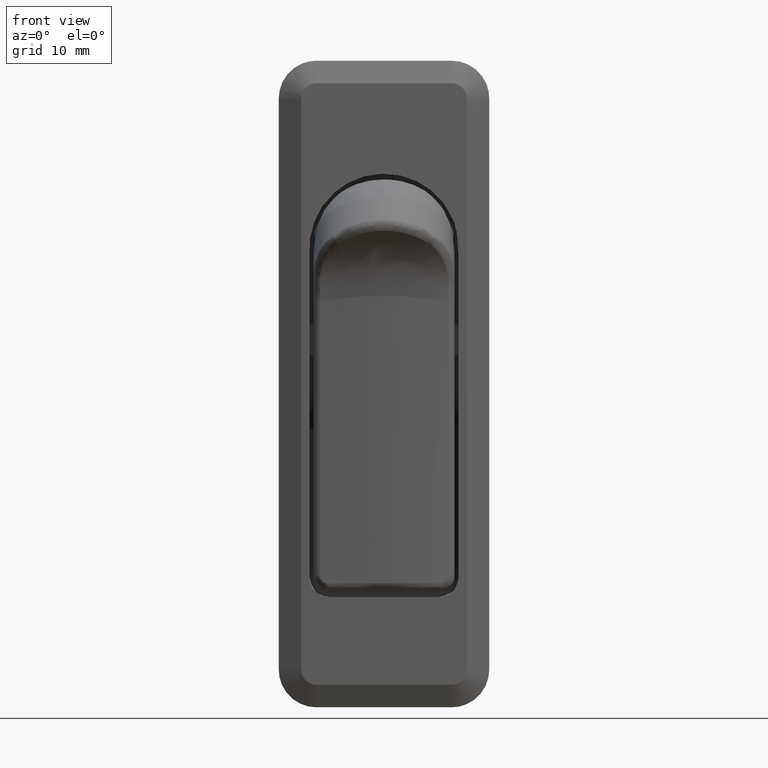
[diagram: clean part render]
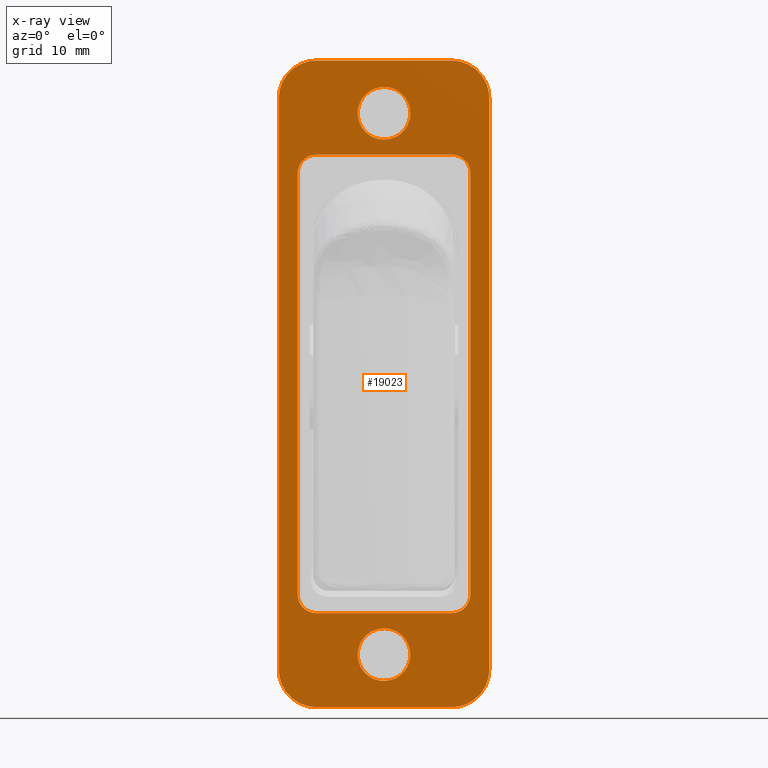
[diagram: x-ray — body ghosted, one internal face saturated and labeled with its STEP entity id]
A machine part, front view, then the same camera in x-ray: the body is ghosted and one INTERNAL B-rep face — a face not visible from any outside direction — is saturated and labeled: STEP entity #19023.
In plain terms, the highlighted face is a freeform B-spline surface patch.
Its self-contained STEP definition (entity closure, byte-faithful):
#12055=CARTESIAN_POINT('',(-3.677614E-015,-3.493471794474069,-54.213669888412298));
#12056=VERTEX_POINT('',#12055);
#12062=CARTESIAN_POINT('',(-3.552714E-015,0.0,-57.500000000000000));
#12063=VERTEX_POINT('',#12062);
#12064=CARTESIAN_POINT('',(-3.552714E-015,0.0,-57.500000000000000));
#12065=CARTESIAN_POINT('',(-3.552714E-015,-3.292471234093840,-57.499999999999993));
#12066=CARTESIAN_POINT('',(-3.677614E-015,-3.493471794474070,-54.213669888412305));
#12074=(BOUNDED_CURVE()B_SPLINE_CURVE(2,(#12064,#12065,#12066),.UNSPECIFIED.,.F.,.U.)B_SPLINE_CURVE_WITH_KNOTS((3,3),(0.500000000000000,0.739332962237988),.UNSPECIFIED.)CURVE()GEOMETRIC_REPRESENTATION_ITEM()RATIONAL_B_SPLINE_CURVE((1.0,0.719603993287829,0.976072041664671))REPRESENTATION_ITEM(''));
#12075=EDGE_CURVE('',#12063,#12056,#12074,.T.);
#12077=CARTESIAN_POINT('',(-3.422506E-015,1.230662910469331,-57.276502525681181));
#12078=VERTEX_POINT('',#12077);
#12079=CARTESIAN_POINT('',(-3.422506E-015,1.230662910469331,-57.276502525681188));
#12080=CARTESIAN_POINT('',(-3.552714E-015,0.635625851342714,-57.500000000000000));
#12081=CARTESIAN_POINT('',(-3.552714E-015,0.0,-57.500000000000000));
#12089=(BOUNDED_CURVE()B_SPLINE_CURVE(2,(#12079,#12080,#12081),.UNSPECIFIED.,.F.,.U.)B_SPLINE_CURVE_WITH_KNOTS((3,3),(0.440284170889381,0.500000000000000),.UNSPECIFIED.)CURVE()GEOMETRIC_REPRESENTATION_ITEM()RATIONAL_B_SPLINE_CURVE((0.893499554624105,0.930038554390707,1.0))REPRESENTATION_ITEM(''));
#12090=EDGE_CURVE('',#12078,#12063,#12089,.T.);
#12140=CARTESIAN_POINT('',(-3.552714E-015,0.0,-50.499999999999993));
#12141=VERTEX_POINT('',#12140);
#12142=CARTESIAN_POINT('',(-3.552714E-015,0.0,-50.499999999999993));
#12143=CARTESIAN_POINT('',(-3.552714E-015,3.500000000000000,-50.499999999999993));
#12144=CARTESIAN_POINT('',(-3.552714E-015,3.500000000000000,-54.0));
#12145=CARTESIAN_POINT('',(-3.552714E-015,3.500000000000000,-56.424133584774268));
#12146=CARTESIAN_POINT('',(-3.422506E-015,1.230662910469331,-57.276502525681181));
#12154=(BOUNDED_CURVE()B_SPLINE_CURVE(2,(#12142,#12143,#12144,#12145,#12146),.UNSPECIFIED.,.F.,.U.)B_SPLINE_CURVE_WITH_KNOTS((3,2,3),(0.0,0.250000000000000,0.440284170889381),.UNSPECIFIED.)CURVE()GEOMETRIC_REPRESENTATION_ITEM()RATIONAL_B_SPLINE_CURVE((1.0,0.707106781186547,1.0,0.777068226795840,0.893499554624105))REPRESENTATION_ITEM(''));
#12155=EDGE_CURVE('',#12141,#12078,#12154,.T.);
#12157=CARTESIAN_POINT('',(-3.677614E-015,-3.493471794474070,-54.213669888412291));
#12158=CARTESIAN_POINT('',(-3.552714E-015,-3.500000000000000,-54.106934671585485));
#12159=CARTESIAN_POINT('',(-3.552714E-015,-3.500000000000000,-54.0));
#12160=CARTESIAN_POINT('',(-3.552714E-015,-3.500000000000000,-50.499999999999993));
#12161=CARTESIAN_POINT('',(-3.552714E-015,0.0,-50.499999999999993));
#12169=(BOUNDED_CURVE()B_SPLINE_CURVE(2,(#12157,#12158,#12159,#12160,#12161),.UNSPECIFIED.,.F.,.U.)B_SPLINE_CURVE_WITH_KNOTS((3,2,3),(0.739332962237987,0.750000000000000,1.0),.UNSPECIFIED.)CURVE()GEOMETRIC_REPRESENTATION_ITEM()RATIONAL_B_SPLINE_CURVE((0.976072041664669,0.987502787898717,1.0,0.707106781186547,1.0))REPRESENTATION_ITEM(''));
#12170=EDGE_CURVE('',#12056,#12141,#12169,.T.);
#12383=CARTESIAN_POINT('',(-3.677614E-015,-3.493471794474069,17.786330111587699));
#12384=VERTEX_POINT('',#12383);
#12390=CARTESIAN_POINT('',(-3.552714E-015,0.0,14.500000000000000));
#12391=VERTEX_POINT('',#12390);
#12392=CARTESIAN_POINT('',(-3.552714E-015,0.0,14.500000000000000));
#12393=CARTESIAN_POINT('',(-3.552714E-015,-3.292471234093840,14.500000000000005));
#12394=CARTESIAN_POINT('',(-3.677614E-015,-3.493471794474070,17.786330111587702));
#12402=(BOUNDED_CURVE()B_SPLINE_CURVE(2,(#12392,#12393,#12394),.UNSPECIFIED.,.F.,.U.)B_SPLINE_CURVE_WITH_KNOTS((3,3),(0.500000000000000,0.739332962237988),.UNSPECIFIED.)CURVE()GEOMETRIC_REPRESENTATION_ITEM()RATIONAL_B_SPLINE_CURVE((1.0,0.719603993287829,0.976072041664671))REPRESENTATION_ITEM(''));
#12403=EDGE_CURVE('',#12391,#12384,#12402,.T.);
#12405=CARTESIAN_POINT('',(-3.422506E-015,1.230662910469331,14.723497474318821));
#12406=VERTEX_POINT('',#12405);
#12407=CARTESIAN_POINT('',(-3.422506E-015,1.230662910469331,14.723497474318817));
#12408=CARTESIAN_POINT('',(-3.552714E-015,0.635625851342714,14.500000000000000));
#12409=CARTESIAN_POINT('',(-3.552714E-015,0.0,14.500000000000000));
#12417=(BOUNDED_CURVE()B_SPLINE_CURVE(2,(#12407,#12408,#12409),.UNSPECIFIED.,.F.,.U.)B_SPLINE_CURVE_WITH_KNOTS((3,3),(0.440284170889381,0.500000000000000),.UNSPECIFIED.)CURVE()GEOMETRIC_REPRESENTATION_ITEM()RATIONAL_B_SPLINE_CURVE((0.893499554624105,0.930038554390707,1.0))REPRESENTATION_ITEM(''));
#12418=EDGE_CURVE('',#12406,#12391,#12417,.T.);
#12468=CARTESIAN_POINT('',(-3.552714E-015,0.0,21.500000000000000));
#12469=VERTEX_POINT('',#12468);
#12470=CARTESIAN_POINT('',(-3.552714E-015,0.0,21.500000000000000));
#12471=CARTESIAN_POINT('',(-3.552714E-015,3.500000000000000,21.500000000000000));
#12472=CARTESIAN_POINT('',(-3.552714E-015,3.500000000000000,18.0));
#12473=CARTESIAN_POINT('',(-3.552714E-015,3.500000000000000,15.575866415225743));
#12474=CARTESIAN_POINT('',(-3.422506E-015,1.230662910469331,14.723497474318815));
#12482=(BOUNDED_CURVE()B_SPLINE_CURVE(2,(#12470,#12471,#12472,#12473,#12474),.UNSPECIFIED.,.F.,.U.)B_SPLINE_CURVE_WITH_KNOTS((3,2,3),(0.0,0.250000000000000,0.440284170889381),.UNSPECIFIED.)CURVE()GEOMETRIC_REPRESENTATION_ITEM()RATIONAL_B_SPLINE_CURVE((1.0,0.707106781186547,1.0,0.777068226795840,0.893499554624105))REPRESENTATION_ITEM(''));
#12483=EDGE_CURVE('',#12469,#12406,#12482,.T.);
#12485=CARTESIAN_POINT('',(-3.677614E-015,-3.493471794474069,17.786330111587695));
#12486=CARTESIAN_POINT('',(-3.552714E-015,-3.500000000000000,17.893065328414526));
#12487=CARTESIAN_POINT('',(-3.552714E-015,-3.500000000000000,18.0));
#12488=CARTESIAN_POINT('',(-3.552714E-015,-3.500000000000000,21.500000000000000));
#12489=CARTESIAN_POINT('',(-3.552714E-015,0.0,21.500000000000000));
#12497=(BOUNDED_CURVE()B_SPLINE_CURVE(2,(#12485,#12486,#12487,#12488,#12489),.UNSPECIFIED.,.F.,.U.)B_SPLINE_CURVE_WITH_KNOTS((3,2,3),(0.739332962237987,0.750000000000000,1.0),.UNSPECIFIED.)CURVE()GEOMETRIC_REPRESENTATION_ITEM()RATIONAL_B_SPLINE_CURVE((0.976072041664669,0.987502787898718,1.0,0.707106781186547,1.0))REPRESENTATION_ITEM(''));
#12498=EDGE_CURVE('',#12384,#12469,#12497,.T.);
#16195=CARTESIAN_POINT('',(0.0,-11.500000000000121,10.0));
#16196=VERTEX_POINT('',#16195);
#16203=CARTESIAN_POINT('',(0.0,-9.000000000000119,12.500000000000000));
#16204=VERTEX_POINT('',#16203);
#16210=CARTESIAN_POINT('',(0.0,-11.500000000000110,10.0));
#16211=CARTESIAN_POINT('',(0.0,-11.500000000000107,12.500000000000000));
#16212=CARTESIAN_POINT('',(0.0,-9.000000000000108,12.500000000000000));
#16220=(BOUNDED_CURVE()B_SPLINE_CURVE(2,(#16210,#16211,#16212),.UNSPECIFIED.,.F.,.U.)CURVE()GEOMETRIC_REPRESENTATION_ITEM()QUASI_UNIFORM_CURVE()RATIONAL_B_SPLINE_CURVE((1.0,0.707106781186548,1.0))REPRESENTATION_ITEM(''));
#16221=EDGE_CURVE('',#16196,#16204,#16220,.T.);
#16240=CARTESIAN_POINT('',(0.0,9.0,12.500000000000000));
#16241=VERTEX_POINT('',#16240);
#16248=CARTESIAN_POINT('',(0.0,11.500000000000000,10.0));
#16249=VERTEX_POINT('',#16248);
#16255=CARTESIAN_POINT('',(0.0,9.0,12.500000000000000));
#16256=CARTESIAN_POINT('',(0.0,11.500000000000000,12.500000000000000));
#16257=CARTESIAN_POINT('',(0.0,11.500000000000000,10.0));
#16265=(BOUNDED_CURVE()B_SPLINE_CURVE(2,(#16255,#16256,#16257),.UNSPECIFIED.,.F.,.U.)CURVE()GEOMETRIC_REPRESENTATION_ITEM()QUASI_UNIFORM_CURVE()RATIONAL_B_SPLINE_CURVE((1.0,0.707106781186548,1.0))REPRESENTATION_ITEM(''));
#16266=EDGE_CURVE('',#16241,#16249,#16265,.T.);
#16984=CARTESIAN_POINT('',(0.0,11.500000000000000,-45.989129150267701));
#16985=VERTEX_POINT('',#16984);
#17000=CARTESIAN_POINT('',(0.0,9.0,-48.489689625733803));
#17001=VERTEX_POINT('',#17000);
#17015=CARTESIAN_POINT('',(0.0,11.500000000000000,-45.989129150267701));
#17016=CARTESIAN_POINT('',(0.0,11.500000000000000,-46.154215383934769));
#17017=CARTESIAN_POINT('',(0.0,11.483816064185840,-46.316545601772731));
#17018=CARTESIAN_POINT('',(0.0,11.436256324752920,-46.556075847320741));
#17019=CARTESIAN_POINT('',(0.0,11.416493622283401,-46.635253508343197));
#17020=CARTESIAN_POINT('',(0.0,11.368971266891981,-46.792247003309441));
#17021=CARTESIAN_POINT('',(0.0,11.341075858766819,-46.870281027129572));
#17022=CARTESIAN_POINT('',(0.0,11.247081613631609,-47.097285296645850));
#17023=CARTESIAN_POINT('',(0.0,11.170387799035350,-47.240845623781517));
#17024=CARTESIAN_POINT('',(0.0,11.057141126077690,-47.410664514096752));
#17025=CARTESIAN_POINT('',(0.0,11.033615006363030,-47.444142385285232));
#17026=CARTESIAN_POINT('',(0.0,10.984781268572140,-47.510110836388613));
#17027=CARTESIAN_POINT('',(0.0,10.959405133532210,-47.542683516857593));
#17028=CARTESIAN_POINT('',(0.0,10.881067156385379,-47.638253861385252));
#17029=CARTESIAN_POINT('',(0.0,10.826108208209799,-47.698896246355751));
#17030=CARTESIAN_POINT('',(0.0,10.653287457166130,-47.871898583125670));
#17031=CARTESIAN_POINT('',(0.0,10.527556822738241,-47.975418061977933));
#17032=CARTESIAN_POINT('',(0.0,10.356938074372319,-48.089700478894308));
#17033=CARTESIAN_POINT('',(0.0,10.322035410330709,-48.111851774601533));
#17034=CARTESIAN_POINT('',(0.0,10.251472245985420,-48.154221848664271));
#17035=CARTESIAN_POINT('',(0.0,10.215800250058919,-48.174456756970230));
#17036=CARTESIAN_POINT('',(0.0,10.107634747065740,-48.232363969213431));
#17037=CARTESIAN_POINT('',(0.0,9.960354127934409,-48.302126755310972));
#17038=CARTESIAN_POINT('',(0.0,9.807047482233891,-48.357224328191009));
#17039=CARTESIAN_POINT('',(0.0,9.689777495506567,-48.392974453394508));
#17040=CARTESIAN_POINT('',(0.0,9.650305159462015,-48.403960680585243));
#17041=CARTESIAN_POINT('',(0.0,9.570582232988475,-48.424039139586100));
#17042=CARTESIAN_POINT('',(0.0,9.530255426601258,-48.433143262091860));
#17043=CARTESIAN_POINT('',(0.0,9.328376248249898,-48.473492515968111));
#17044=CARTESIAN_POINT('',(0.0,9.165087300600289,-48.489689625733810));
#17045=CARTESIAN_POINT('',(0.0,8.999999999999998,-48.489689625733803));
#17046=B_SPLINE_CURVE_WITH_KNOTS('',3,(#17015,#17016,#17017,#17018,#17019,#17020,#17021,#17022,#17023,#17024,#17025,#17026,#17027,#17028,#17029,#17030,#17031,#17032,#17033,#17034,#17035,#17036,#17037,#17038,#17039,#17040,#17041,#17042,#17043,#17044,#17045),.UNSPECIFIED.,.F.,.U.,(4,2,2,2,2,2,2,2,2,2,2,1,2,2,2,4),(0.0,0.124999999999995,0.187499999999992,0.249999999999990,0.374999999999985,0.406249999999987,0.437499999999990,0.499999999999994,0.625000000000004,0.656250000000005,0.687500000000005,0.750000000000005,0.812500000000004,0.843750000000003,0.875000000000002,1.0),.UNSPECIFIED.);
#17047=EDGE_CURVE('',#16985,#17001,#17046,.T.);
#17069=CARTESIAN_POINT('',(0.0,-9.000000000000119,-48.489689625733803));
#17070=VERTEX_POINT('',#17069);
#17085=CARTESIAN_POINT('',(0.0,-11.500000000000121,-45.989129150267701));
#17086=VERTEX_POINT('',#17085);
#17100=CARTESIAN_POINT('',(-1.430700E-016,-9.000000000000119,-48.489689625733803));
#17101=CARTESIAN_POINT('',(-1.430700E-016,-9.165086658248500,-48.489689625733803));
#17102=CARTESIAN_POINT('',(-1.552930E-032,-9.327415141307306,-48.473494599859237));
#17103=CARTESIAN_POINT('',(0.0,-9.566939927793406,-48.425903736678727));
#17104=CARTESIAN_POINT('',(0.0,-9.646115286503532,-48.406128209653907));
#17105=CARTESIAN_POINT('',(0.0,-9.803103203583708,-48.358575275646579));
#17106=CARTESIAN_POINT('',(0.0,-9.881130554903850,-48.330663090618920));
#17107=CARTESIAN_POINT('',(0.0,-10.108107379448599,-48.236616744681427));
#17108=CARTESIAN_POINT('',(0.0,-10.251646394486629,-48.159882629747742));
#17109=CARTESIAN_POINT('',(0.0,-10.421435447159030,-48.046579656471451));
#17110=CARTESIAN_POINT('',(0.0,-10.454907188129891,-48.023041975302533));
#17111=CARTESIAN_POINT('',(0.0,-10.520863057209709,-47.974184518411221));
#17112=CARTESIAN_POINT('',(0.0,-10.553430328561729,-47.948795240157281));
#17113=CARTESIAN_POINT('',(0.0,-10.648968621109500,-47.870430382560620));
#17114=CARTESIAN_POINT('',(0.0,-10.709590152545490,-47.815453349527338));
#17115=CARTESIAN_POINT('',(0.0,-10.882531384915829,-47.642577831172979));
#17116=CARTESIAN_POINT('',(0.0,-10.986012051576100,-47.516810003044718));
#17117=CARTESIAN_POINT('',(0.0,-11.100248339426431,-47.346143822532973));
#17118=CARTESIAN_POINT('',(0.0,-11.122389993413160,-47.311232204602867));
#17119=CARTESIAN_POINT('',(0.0,-11.164735294533530,-47.240662015767967));
#17120=CARTESIAN_POINT('',(0.0,-11.184958447210549,-47.204986480379389));
#17121=CARTESIAN_POINT('',(0.0,-11.242832155562549,-47.096810240034088));
#17122=CARTESIAN_POINT('',(0.0,-11.312554993892361,-46.949515000535527));
#17123=CARTESIAN_POINT('',(0.0,-11.367620935710750,-46.796192730319319));
#17124=CARTESIAN_POINT('',(0.0,-11.403350295212300,-46.678910560172227));
#17125=CARTESIAN_POINT('',(0.0,-11.414330090033859,-46.639434083589400));
#17126=CARTESIAN_POINT('',(0.0,-11.434396642376390,-46.559702698649239));
#17127=CARTESIAN_POINT('',(0.0,-11.443494633043599,-46.519374128018477));
#17128=CARTESIAN_POINT('',(0.0,-11.483814233400540,-46.317500554687328));
#17129=CARTESIAN_POINT('',(0.0,-11.500000000000121,-46.154214761178757));
#17130=CARTESIAN_POINT('',(0.0,-11.500000000000121,-45.989129150267701));
#17131=B_SPLINE_CURVE_WITH_KNOTS('',3,(#17100,#17101,#17102,#17103,#17104,#17105,#17106,#17107,#17108,#17109,#17110,#17111,#17112,#17113,#17114,#17115,#17116,#17117,#17118,#17119,#17120,#17121,#17122,#17123,#17124,#17125,#17126,#17127,#17128,#17129,#17130),.UNSPECIFIED.,.F.,.U.,(4,2,2,2,2,2,2,2,2,2,2,1,2,2,2,4),(0.0,0.124999999999996,0.187499999999993,0.249999999999991,0.374999999999987,0.406249999999987,0.437499999999986,0.499999999999988,0.624999999999998,0.656250000000002,0.687500000000007,0.750000000000012,0.812500000000016,0.843750000000016,0.875000000000016,1.0),.UNSPECIFIED.);
#17132=EDGE_CURVE('',#17070,#17086,#17131,.T.);
#18175=CARTESIAN_POINT('',(0.0,-9.000000000000119,12.500000000000000));
#18176=CARTESIAN_POINT('',(0.0,9.0,12.500000000000000));
#18177=QUASI_UNIFORM_CURVE('',1,(#18175,#18176),.UNSPECIFIED.,.F.,.U.);
#18178=EDGE_CURVE('',#16204,#16241,#18177,.T.);
#18391=CARTESIAN_POINT('',(0.0,-9.000000000000119,-48.489689625733803));
#18392=CARTESIAN_POINT('',(0.0,9.0,-48.489689625733803));
#18393=QUASI_UNIFORM_CURVE('',1,(#18391,#18392),.UNSPECIFIED.,.F.,.U.);
#18394=EDGE_CURVE('',#17070,#17001,#18393,.T.);
#18582=CARTESIAN_POINT('',(0.0,-11.500000000000121,10.0));
#18583=CARTESIAN_POINT('',(0.0,-11.500000000000121,-45.989129150267701));
#18584=QUASI_UNIFORM_CURVE('',1,(#18582,#18583),.UNSPECIFIED.,.F.,.U.);
#18585=EDGE_CURVE('',#16196,#17086,#18584,.T.);
#18626=CARTESIAN_POINT('',(0.0,11.500000000000000,-45.989129150267701));
#18627=CARTESIAN_POINT('',(0.0,11.500000000000000,10.0));
#18628=QUASI_UNIFORM_CURVE('',1,(#18626,#18627),.UNSPECIFIED.,.F.,.U.);
#18629=EDGE_CURVE('',#16985,#16249,#18628,.T.);
#18641=CARTESIAN_POINT('',(0.0,8.999999999999890,25.0));
#18642=VERTEX_POINT('',#18641);
#18649=CARTESIAN_POINT('',(0.0,-9.0,25.0));
#18650=VERTEX_POINT('',#18649);
#18656=CARTESIAN_POINT('',(0.0,8.999999999999890,25.0));
#18657=CARTESIAN_POINT('',(0.0,-9.0,25.0));
#18658=QUASI_UNIFORM_CURVE('',1,(#18656,#18657),.UNSPECIFIED.,.F.,.U.);
#18659=EDGE_CURVE('',#18642,#18650,#18658,.T.);
#18678=CARTESIAN_POINT('',(0.0,14.0,20.0));
#18679=VERTEX_POINT('',#18678);
#18687=CARTESIAN_POINT('',(0.0,14.0,20.0));
#18688=CARTESIAN_POINT('',(0.0,13.999999999999892,25.0));
#18689=CARTESIAN_POINT('',(0.0,8.999999999999890,25.0));
#18697=(BOUNDED_CURVE()B_SPLINE_CURVE(2,(#18687,#18688,#18689),.UNSPECIFIED.,.F.,.U.)CURVE()GEOMETRIC_REPRESENTATION_ITEM()QUASI_UNIFORM_CURVE()RATIONAL_B_SPLINE_CURVE((1.0,0.707106781186548,1.0))REPRESENTATION_ITEM(''));
#18698=EDGE_CURVE('',#18679,#18642,#18697,.T.);
#18708=CARTESIAN_POINT('',(0.0,14.0,-56.0));
#18709=VERTEX_POINT('',#18708);
#18717=CARTESIAN_POINT('',(0.0,14.0,-56.0));
#18718=CARTESIAN_POINT('',(0.0,14.0,20.0));
#18719=QUASI_UNIFORM_CURVE('',1,(#18717,#18718),.UNSPECIFIED.,.F.,.U.);
#18720=EDGE_CURVE('',#18709,#18679,#18719,.T.);
#18739=CARTESIAN_POINT('',(0.0,9.0,-61.0));
#18740=VERTEX_POINT('',#18739);
#18748=CARTESIAN_POINT('',(0.0,9.0,-61.0));
#18749=CARTESIAN_POINT('',(0.0,13.999999999999998,-60.999999999999993));
#18750=CARTESIAN_POINT('',(0.0,14.0,-56.0));
#18758=(BOUNDED_CURVE()B_SPLINE_CURVE(2,(#18748,#18749,#18750),.UNSPECIFIED.,.F.,.U.)CURVE()GEOMETRIC_REPRESENTATION_ITEM()QUASI_UNIFORM_CURVE()RATIONAL_B_SPLINE_CURVE((1.0,0.707106781186548,1.0))REPRESENTATION_ITEM(''));
#18759=EDGE_CURVE('',#18740,#18709,#18758,.T.);
#18769=CARTESIAN_POINT('',(0.0,-9.0,-61.0));
#18770=VERTEX_POINT('',#18769);
#18778=CARTESIAN_POINT('',(0.0,-9.0,-61.0));
#18779=CARTESIAN_POINT('',(0.0,9.0,-61.0));
#18780=QUASI_UNIFORM_CURVE('',1,(#18778,#18779),.UNSPECIFIED.,.F.,.U.);
#18781=EDGE_CURVE('',#18770,#18740,#18780,.T.);
#18800=CARTESIAN_POINT('',(0.0,-14.0,-56.0));
#18801=VERTEX_POINT('',#18800);
#18809=CARTESIAN_POINT('',(0.0,-14.0,-56.0));
#18810=CARTESIAN_POINT('',(0.0,-13.999999999999998,-60.999999999999993));
#18811=CARTESIAN_POINT('',(0.0,-9.0,-61.0));
#18819=(BOUNDED_CURVE()B_SPLINE_CURVE(2,(#18809,#18810,#18811),.UNSPECIFIED.,.F.,.U.)CURVE()GEOMETRIC_REPRESENTATION_ITEM()QUASI_UNIFORM_CURVE()RATIONAL_B_SPLINE_CURVE((1.0,0.707106781186548,1.0))REPRESENTATION_ITEM(''));
#18820=EDGE_CURVE('',#18801,#18770,#18819,.T.);
#18830=CARTESIAN_POINT('',(0.0,-14.0,20.0));
#18831=VERTEX_POINT('',#18830);
#18839=CARTESIAN_POINT('',(0.0,-14.0,20.0));
#18840=CARTESIAN_POINT('',(0.0,-14.0,-56.0));
#18841=QUASI_UNIFORM_CURVE('',1,(#18839,#18840),.UNSPECIFIED.,.F.,.U.);
#18842=EDGE_CURVE('',#18831,#18801,#18841,.T.);
#18864=CARTESIAN_POINT('',(0.0,-9.0,25.0));
#18865=CARTESIAN_POINT('',(0.0,-13.999999999999998,25.0));
#18866=CARTESIAN_POINT('',(0.0,-14.0,20.0));
#18874=(BOUNDED_CURVE()B_SPLINE_CURVE(2,(#18864,#18865,#18866),.UNSPECIFIED.,.F.,.U.)CURVE()GEOMETRIC_REPRESENTATION_ITEM()QUASI_UNIFORM_CURVE()RATIONAL_B_SPLINE_CURVE((1.0,0.707106781186548,1.0))REPRESENTATION_ITEM(''));
#18875=EDGE_CURVE('',#18650,#18831,#18874,.T.);
#18986=CARTESIAN_POINT('',(0.0,-15.398599945730570,29.295699833315322));
#18987=CARTESIAN_POINT('',(0.0,15.398600696749090,29.295699833315322));
#18988=CARTESIAN_POINT('',(0.0,-15.398599945730570,-65.295702140015067));
#18989=CARTESIAN_POINT('',(0.0,15.398600696749090,-65.295702140015067));
#18990=B_SPLINE_SURFACE_WITH_KNOTS('',1,1,((#18986,#18988),(#18987,#18989)),.UNSPECIFIED.,.F.,.F.,.U.,(2,2),(2,2),(0.0,30.797200642479670),(0.0,94.591401973330392),.UNSPECIFIED.);
#18991=ORIENTED_EDGE('',*,*,#18875,.T.);
#18992=ORIENTED_EDGE('',*,*,#18842,.T.);
#18993=ORIENTED_EDGE('',*,*,#18820,.T.);
#18994=ORIENTED_EDGE('',*,*,#18781,.T.);
#18995=ORIENTED_EDGE('',*,*,#18759,.T.);
#18996=ORIENTED_EDGE('',*,*,#18720,.T.);
#18997=ORIENTED_EDGE('',*,*,#18698,.T.);
#18998=ORIENTED_EDGE('',*,*,#18659,.T.);
#18999=EDGE_LOOP('',(#18991,#18992,#18993,#18994,#18995,#18996,#18997,#18998));
#19000=FACE_OUTER_BOUND('',#18999,.T.);
#19001=ORIENTED_EDGE('',*,*,#18585,.F.);
#19002=ORIENTED_EDGE('',*,*,#16221,.T.);
#19003=ORIENTED_EDGE('',*,*,#18178,.T.);
#19004=ORIENTED_EDGE('',*,*,#16266,.T.);
#19005=ORIENTED_EDGE('',*,*,#18629,.F.);
#19006=ORIENTED_EDGE('',*,*,#17047,.T.);
#19007=ORIENTED_EDGE('',*,*,#18394,.F.);
#19008=ORIENTED_EDGE('',*,*,#17132,.T.);
#19009=EDGE_LOOP('',(#19001,#19002,#19003,#19004,#19005,#19006,#19007,#19008));
#19010=FACE_BOUND('',#19009,.T.);
#19011=ORIENTED_EDGE('',*,*,#12403,.T.);
#19012=ORIENTED_EDGE('',*,*,#12498,.T.);
#19013=ORIENTED_EDGE('',*,*,#12483,.T.);
#19014=ORIENTED_EDGE('',*,*,#12418,.T.);
#19015=EDGE_LOOP('',(#19011,#19012,#19013,#19014));
#19016=FACE_BOUND('',#19015,.T.);
#19017=ORIENTED_EDGE('',*,*,#12075,.T.);
#19018=ORIENTED_EDGE('',*,*,#12170,.T.);
#19019=ORIENTED_EDGE('',*,*,#12155,.T.);
#19020=ORIENTED_EDGE('',*,*,#12090,.T.);
#19021=EDGE_LOOP('',(#19017,#19018,#19019,#19020));
#19022=FACE_BOUND('',#19021,.T.);
#19023=ADVANCED_FACE('',(#19000,#19010,#19016,#19022),#18990,.F.);